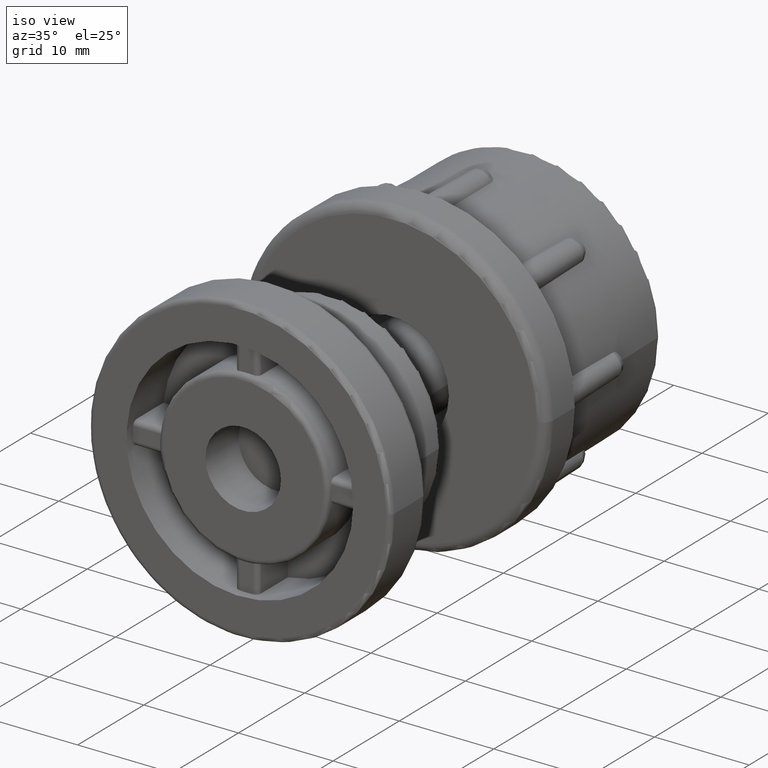
[diagram: clean part render]
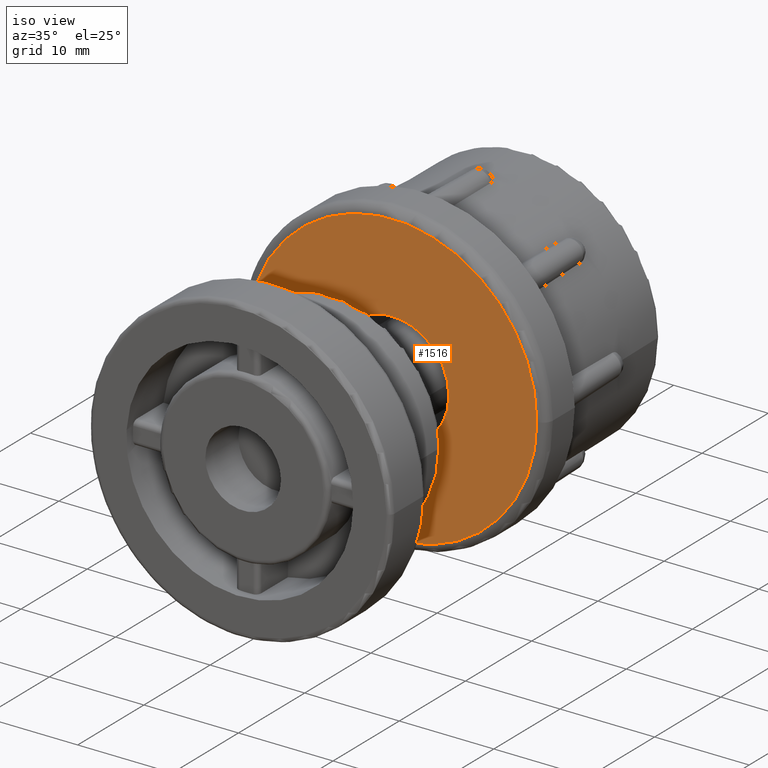
[diagram: same view with one face highlighted and labeled with its STEP entity id]
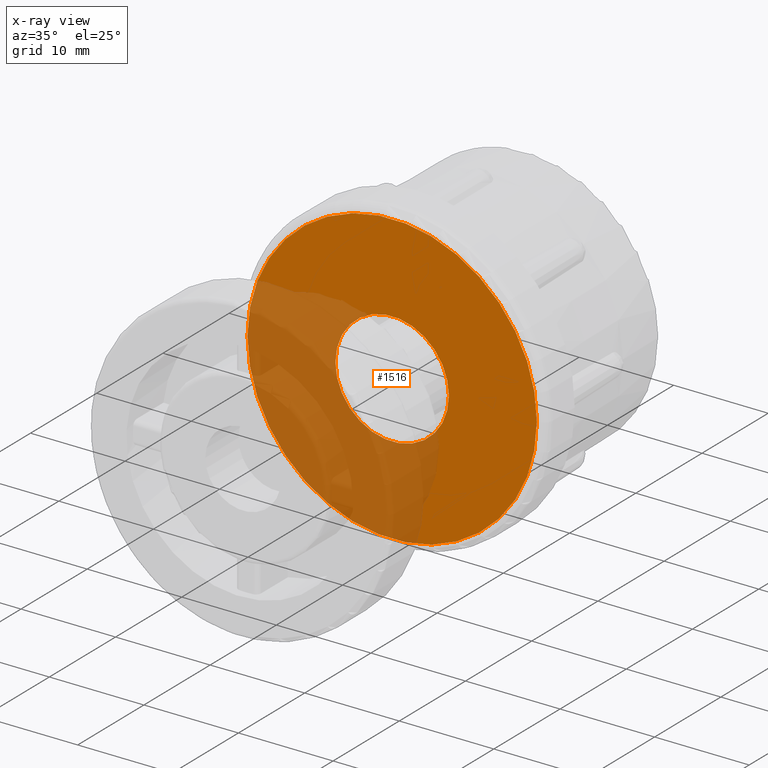
[diagram: x-ray of the same camera — body ghosted, the highlighted face saturated]
A machine part, iso view. The second image highlights one B-rep face of the part: STEP entity #1516.
The next image is the same camera in x-ray: the body ghosted, the highlighted face saturated — about 41% of this face is hidden behind the body in this view.
In plain terms, the highlighted planar face has unit normal (0, -1, 0).
Its self-contained STEP definition (entity closure, byte-faithful):
#66=FACE_BOUND('',#382,.T.);
#132=CIRCLE('',#1668,15.3);
#134=CIRCLE('',#1672,6.);
#195=PLANE('',#1671);
#267=FACE_OUTER_BOUND('',#381,.T.);
#381=EDGE_LOOP('',(#1248));
#382=EDGE_LOOP('',(#1249));
#749=VERTEX_POINT('',#2849);
#751=VERTEX_POINT('',#2855);
#934=EDGE_CURVE('',#749,#749,#132,.T.);
#936=EDGE_CURVE('',#751,#751,#134,.T.);
#1248=ORIENTED_EDGE('',*,*,#934,.F.);
#1249=ORIENTED_EDGE('',*,*,#936,.T.);
#1516=ADVANCED_FACE('',(#267,#66),#195,.T.);
#1668=AXIS2_PLACEMENT_3D('',#2850,#1995,#1996);
#1671=AXIS2_PLACEMENT_3D('',#2854,#2001,#2002);
#1672=AXIS2_PLACEMENT_3D('',#2856,#2003,#2004);
#1995=DIRECTION('center_axis',(-6.12323399573677E-17,1.,0.));
#1996=DIRECTION('ref_axis',(-1.,-6.12323399573677E-17,1.22464679914735E-16));
#2001=DIRECTION('center_axis',(6.12323399573677E-17,-1.,0.));
#2002=DIRECTION('ref_axis',(0.,0.,-1.));
#2003=DIRECTION('center_axis',(-6.12323399573677E-17,1.,0.));
#2004=DIRECTION('ref_axis',(1.,0.,0.));
#2849=CARTESIAN_POINT('',(15.3,9.36854801347725E-16,-3.7474192053909E-15));
#2850=CARTESIAN_POINT('Origin',(1.46957615897683E-16,0.,0.));
#2854=CARTESIAN_POINT('Origin',(0.,0.,0.));
#2855=CARTESIAN_POINT('',(6.,0.,0.));
#2856=CARTESIAN_POINT('Origin',(2.46600236687946E-15,0.,0.));